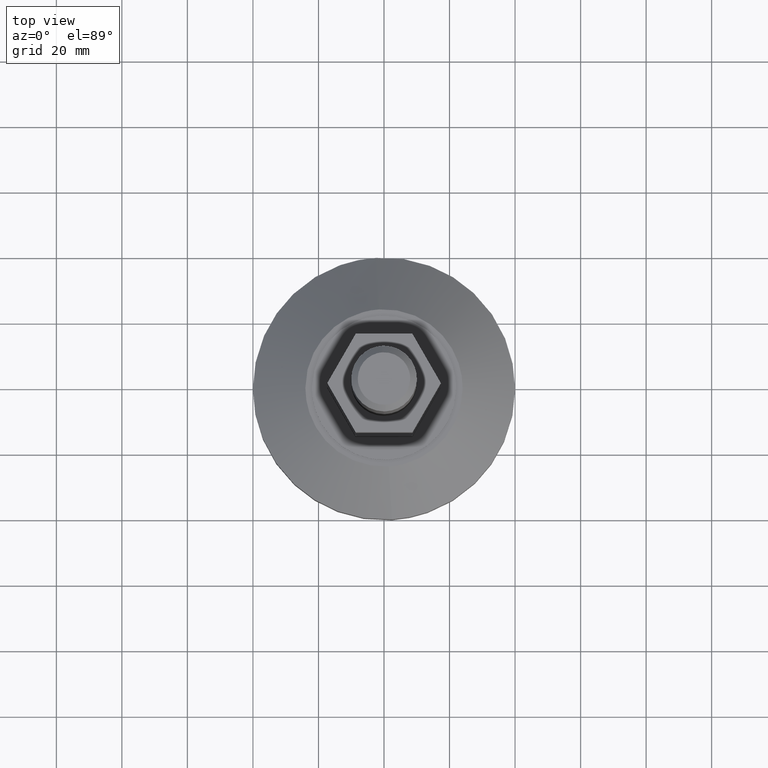
[diagram: clean part render]
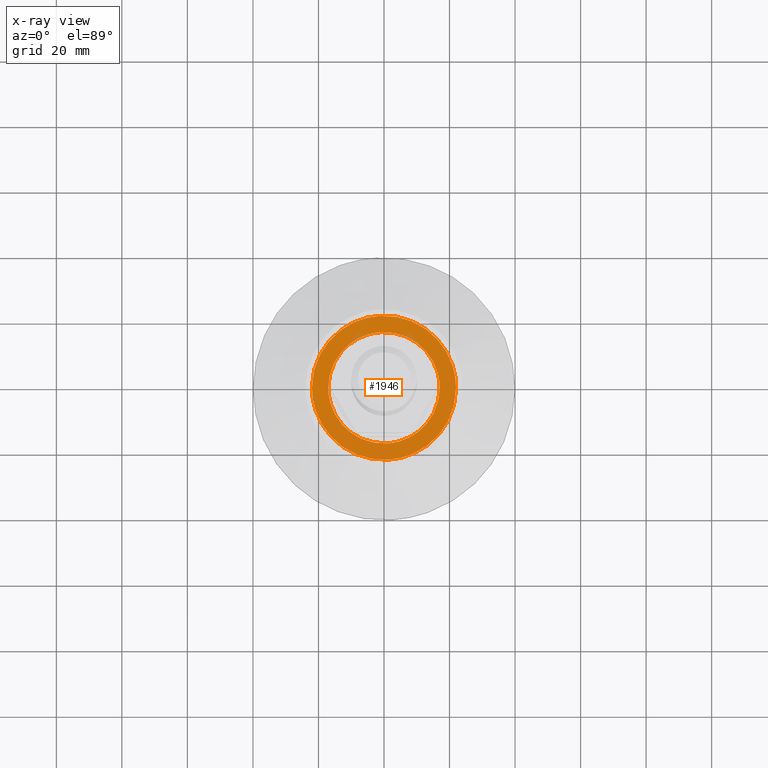
[diagram: x-ray — body ghosted, one internal face saturated and labeled with its STEP entity id]
A machine part, top view, then the same camera in x-ray: the body is ghosted and one INTERNAL B-rep face — a face not visible from any outside direction — is saturated and labeled: STEP entity #1946.
In plain terms, the highlighted face is a freeform B-spline surface patch.
Its self-contained STEP definition (entity closure, byte-faithful):
#1766=CARTESIAN_POINT('',(-1.037795528528435,16.968293386197558,28.500000000000000));
#1767=VERTEX_POINT('',#1766);
#1773=CARTESIAN_POINT('',(16.999999999999769,0.0,28.500000000000000));
#1774=VERTEX_POINT('',#1773);
#1775=CARTESIAN_POINT('',(-1.037795528528435,16.968293386197558,28.500000000000004));
#1776=CARTESIAN_POINT('',(-0.519382112735526,16.999999999974229,28.500000000000004));
#1777=CARTESIAN_POINT('',(1.550669E-012,16.999999999974619,28.500000000000000));
#1778=CARTESIAN_POINT('',(17.000000000000512,16.999999999987573,28.499999999999996));
#1779=CARTESIAN_POINT('',(16.999999999999769,0.0,28.500000000000000));
#1787=(BOUNDED_CURVE()B_SPLINE_CURVE(2,(#1775,#1776,#1777,#1778,#1779),.UNSPECIFIED.,.F.,.U.)B_SPLINE_CURVE_WITH_KNOTS((3,2,3),(0.239333263680858,0.250000000000000,0.500000000000000),.UNSPECIFIED.)CURVE()GEOMETRIC_REPRESENTATION_ITEM()RATIONAL_B_SPLINE_CURVE((0.976072687714975,0.987503141061009,1.0,0.707106781186547,1.0))REPRESENTATION_ITEM(''));
#1788=EDGE_CURVE('',#1767,#1774,#1787,.T.);
#1790=CARTESIAN_POINT('',(1.037795528528469,-16.968293386197558,28.500000000000000));
#1791=VERTEX_POINT('',#1790);
#1792=CARTESIAN_POINT('',(16.999999999999769,0.0,28.500000000000000));
#1793=CARTESIAN_POINT('',(16.999999999998973,-15.992031127601592,28.500000000000007));
#1794=CARTESIAN_POINT('',(1.037795528528469,-16.968293386197562,28.500000000000000));
#1802=(BOUNDED_CURVE()B_SPLINE_CURVE(2,(#1792,#1793,#1794),.UNSPECIFIED.,.F.,.U.)B_SPLINE_CURVE_WITH_KNOTS((3,3),(0.500000000000000,0.739333263680858),.UNSPECIFIED.)CURVE()GEOMETRIC_REPRESENTATION_ITEM()RATIONAL_B_SPLINE_CURVE((1.0,0.719603640125539,0.976072687714975))REPRESENTATION_ITEM(''));
#1803=EDGE_CURVE('',#1774,#1791,#1802,.T.);
#1835=CARTESIAN_POINT('',(-16.999999999999741,0.0,28.500000000000000));
#1836=VERTEX_POINT('',#1835);
#1837=CARTESIAN_POINT('',(1.037795528528469,-16.968293386197562,28.500000000000000));
#1838=CARTESIAN_POINT('',(0.519382112735558,-16.999999999974229,28.500000000000004));
#1839=CARTESIAN_POINT('',(-1.520093E-012,-16.999999999974630,28.500000000000000));
#1840=CARTESIAN_POINT('',(-17.000000000000487,-16.999999999987573,28.499999999999996));
#1841=CARTESIAN_POINT('',(-16.999999999999741,0.0,28.500000000000000));
#1849=(BOUNDED_CURVE()B_SPLINE_CURVE(2,(#1837,#1838,#1839,#1840,#1841),.UNSPECIFIED.,.F.,.U.)B_SPLINE_CURVE_WITH_KNOTS((3,2,3),(0.739333263680858,0.750000000000000,1.0),.UNSPECIFIED.)CURVE()GEOMETRIC_REPRESENTATION_ITEM()RATIONAL_B_SPLINE_CURVE((0.976072687714975,0.987503141061009,1.0,0.707106781186547,1.0))REPRESENTATION_ITEM(''));
#1850=EDGE_CURVE('',#1791,#1836,#1849,.T.);
#1852=CARTESIAN_POINT('',(-16.999999999999741,0.0,28.500000000000000));
#1853=CARTESIAN_POINT('',(-16.999999999998945,15.992031127601592,28.499999999999993));
#1854=CARTESIAN_POINT('',(-1.037795528528435,16.968293386197558,28.500000000000004));
#1862=(BOUNDED_CURVE()B_SPLINE_CURVE(2,(#1852,#1853,#1854),.UNSPECIFIED.,.F.,.U.)B_SPLINE_CURVE_WITH_KNOTS((3,3),(0.0,0.239333263680858),.UNSPECIFIED.)CURVE()GEOMETRIC_REPRESENTATION_ITEM()RATIONAL_B_SPLINE_CURVE((1.0,0.719603640125539,0.976072687714975))REPRESENTATION_ITEM(''));
#1863=EDGE_CURVE('',#1836,#1767,#1862,.T.);
#1869=CARTESIAN_POINT('',(-24.197799914719450,-24.197258520802212,28.500000000000000));
#1870=CARTESIAN_POINT('',(24.197801094891439,-24.197258520802212,28.500000000000000));
#1871=CARTESIAN_POINT('',(-24.197799914719450,24.197257734020901,28.500000000000000));
#1872=CARTESIAN_POINT('',(24.197801094891439,24.197257734020901,28.500000000000000));
#1873=B_SPLINE_SURFACE_WITH_KNOTS('',1,1,((#1869,#1871),(#1870,#1872)),.UNSPECIFIED.,.F.,.F.,.U.,(2,2),(2,2),(0.0,48.395601009610893),(0.0,48.394516254823117),.UNSPECIFIED.);
#1874=CARTESIAN_POINT('',(-21.999999999999989,0.0,28.500000000000000));
#1875=VERTEX_POINT('',#1874);
#1876=CARTESIAN_POINT('',(-1.343036667862438,21.958967473626799,28.499999999991129));
#1877=VERTEX_POINT('',#1876);
#1878=CARTESIAN_POINT('',(-21.999999999999989,0.0,28.500000000000000));
#1879=CARTESIAN_POINT('',(-21.999999999999314,20.695562933553326,28.499999999995573));
#1880=CARTESIAN_POINT('',(-1.343036667862438,21.958967473626796,28.499999999991132));
#1888=(BOUNDED_CURVE()B_SPLINE_CURVE(2,(#1878,#1879,#1880),.UNSPECIFIED.,.F.,.U.)B_SPLINE_CURVE_WITH_KNOTS((3,3),(0.0,0.239333207416970),.UNSPECIFIED.)CURVE()GEOMETRIC_REPRESENTATION_ITEM()RATIONAL_B_SPLINE_CURVE((1.0,0.719603706042784,0.976072567130465))REPRESENTATION_ITEM(''));
#1889=EDGE_CURVE('',#1875,#1877,#1888,.T.);
#1890=ORIENTED_EDGE('',*,*,#1889,.T.);
#1891=CARTESIAN_POINT('',(22.000000000000011,0.0,28.500000000000000));
#1892=VERTEX_POINT('',#1891);
#1893=CARTESIAN_POINT('',(-1.343036667862438,21.958967473626796,28.499999999991132));
#1894=CARTESIAN_POINT('',(-0.672145147873552,21.999999999978154,28.499999999991264));
#1895=CARTESIAN_POINT('',(1.329390E-012,21.999999999978488,28.499999999991399));
#1896=CARTESIAN_POINT('',(22.000000000000657,21.999999999989583,28.499999999995833));
#1897=CARTESIAN_POINT('',(22.000000000000011,0.0,28.500000000000000));
#1905=(BOUNDED_CURVE()B_SPLINE_CURVE(2,(#1893,#1894,#1895,#1896,#1897),.UNSPECIFIED.,.F.,.U.)B_SPLINE_CURVE_WITH_KNOTS((3,2,3),(0.239333207416970,0.250000000000000,0.500000000000000),.UNSPECIFIED.)CURVE()GEOMETRIC_REPRESENTATION_ITEM()RATIONAL_B_SPLINE_CURVE((0.976072567130465,0.987503075143764,1.0,0.707106781186548,1.0))REPRESENTATION_ITEM(''));
#1906=EDGE_CURVE('',#1877,#1892,#1905,.T.);
#1907=ORIENTED_EDGE('',*,*,#1906,.T.);
#1908=CARTESIAN_POINT('',(1.343036667862463,-21.958967473626799,28.499999999991140));
#1909=VERTEX_POINT('',#1908);
#1910=CARTESIAN_POINT('',(22.000000000000011,0.0,28.500000000000000));
#1911=CARTESIAN_POINT('',(21.999999999999343,-20.695562933553326,28.499999999995580));
#1912=CARTESIAN_POINT('',(1.343036667862463,-21.958967473626799,28.499999999991136));
#1920=(BOUNDED_CURVE()B_SPLINE_CURVE(2,(#1910,#1911,#1912),.UNSPECIFIED.,.F.,.U.)B_SPLINE_CURVE_WITH_KNOTS((3,3),(0.500000000000000,0.739333207416970),.UNSPECIFIED.)CURVE()GEOMETRIC_REPRESENTATION_ITEM()RATIONAL_B_SPLINE_CURVE((1.0,0.719603706042784,0.976072567130465))REPRESENTATION_ITEM(''));
#1921=EDGE_CURVE('',#1892,#1909,#1920,.T.);
#1922=ORIENTED_EDGE('',*,*,#1921,.T.);
#1923=CARTESIAN_POINT('',(1.343036667862463,-21.958967473626799,28.499999999991136));
#1924=CARTESIAN_POINT('',(0.672145147873575,-21.999999999978154,28.499999999991264));
#1925=CARTESIAN_POINT('',(-1.308078E-012,-21.999999999978488,28.499999999991399));
#1926=CARTESIAN_POINT('',(-22.000000000000625,-21.999999999989583,28.499999999995833));
#1927=CARTESIAN_POINT('',(-21.999999999999989,0.0,28.500000000000000));
#1935=(BOUNDED_CURVE()B_SPLINE_CURVE(2,(#1923,#1924,#1925,#1926,#1927),.UNSPECIFIED.,.F.,.U.)B_SPLINE_CURVE_WITH_KNOTS((3,2,3),(0.739333207416970,0.750000000000000,1.0),.UNSPECIFIED.)CURVE()GEOMETRIC_REPRESENTATION_ITEM()RATIONAL_B_SPLINE_CURVE((0.976072567130465,0.987503075143764,1.0,0.707106781186548,1.0))REPRESENTATION_ITEM(''));
#1936=EDGE_CURVE('',#1909,#1875,#1935,.T.);
#1937=ORIENTED_EDGE('',*,*,#1936,.T.);
#1938=EDGE_LOOP('',(#1890,#1907,#1922,#1937));
#1939=FACE_OUTER_BOUND('',#1938,.T.);
#1940=ORIENTED_EDGE('',*,*,#1803,.F.);
#1941=ORIENTED_EDGE('',*,*,#1788,.F.);
#1942=ORIENTED_EDGE('',*,*,#1863,.F.);
#1943=ORIENTED_EDGE('',*,*,#1850,.F.);
#1944=EDGE_LOOP('',(#1940,#1941,#1942,#1943));
#1945=FACE_BOUND('',#1944,.T.);
#1946=ADVANCED_FACE('',(#1939,#1945),#1873,.F.);